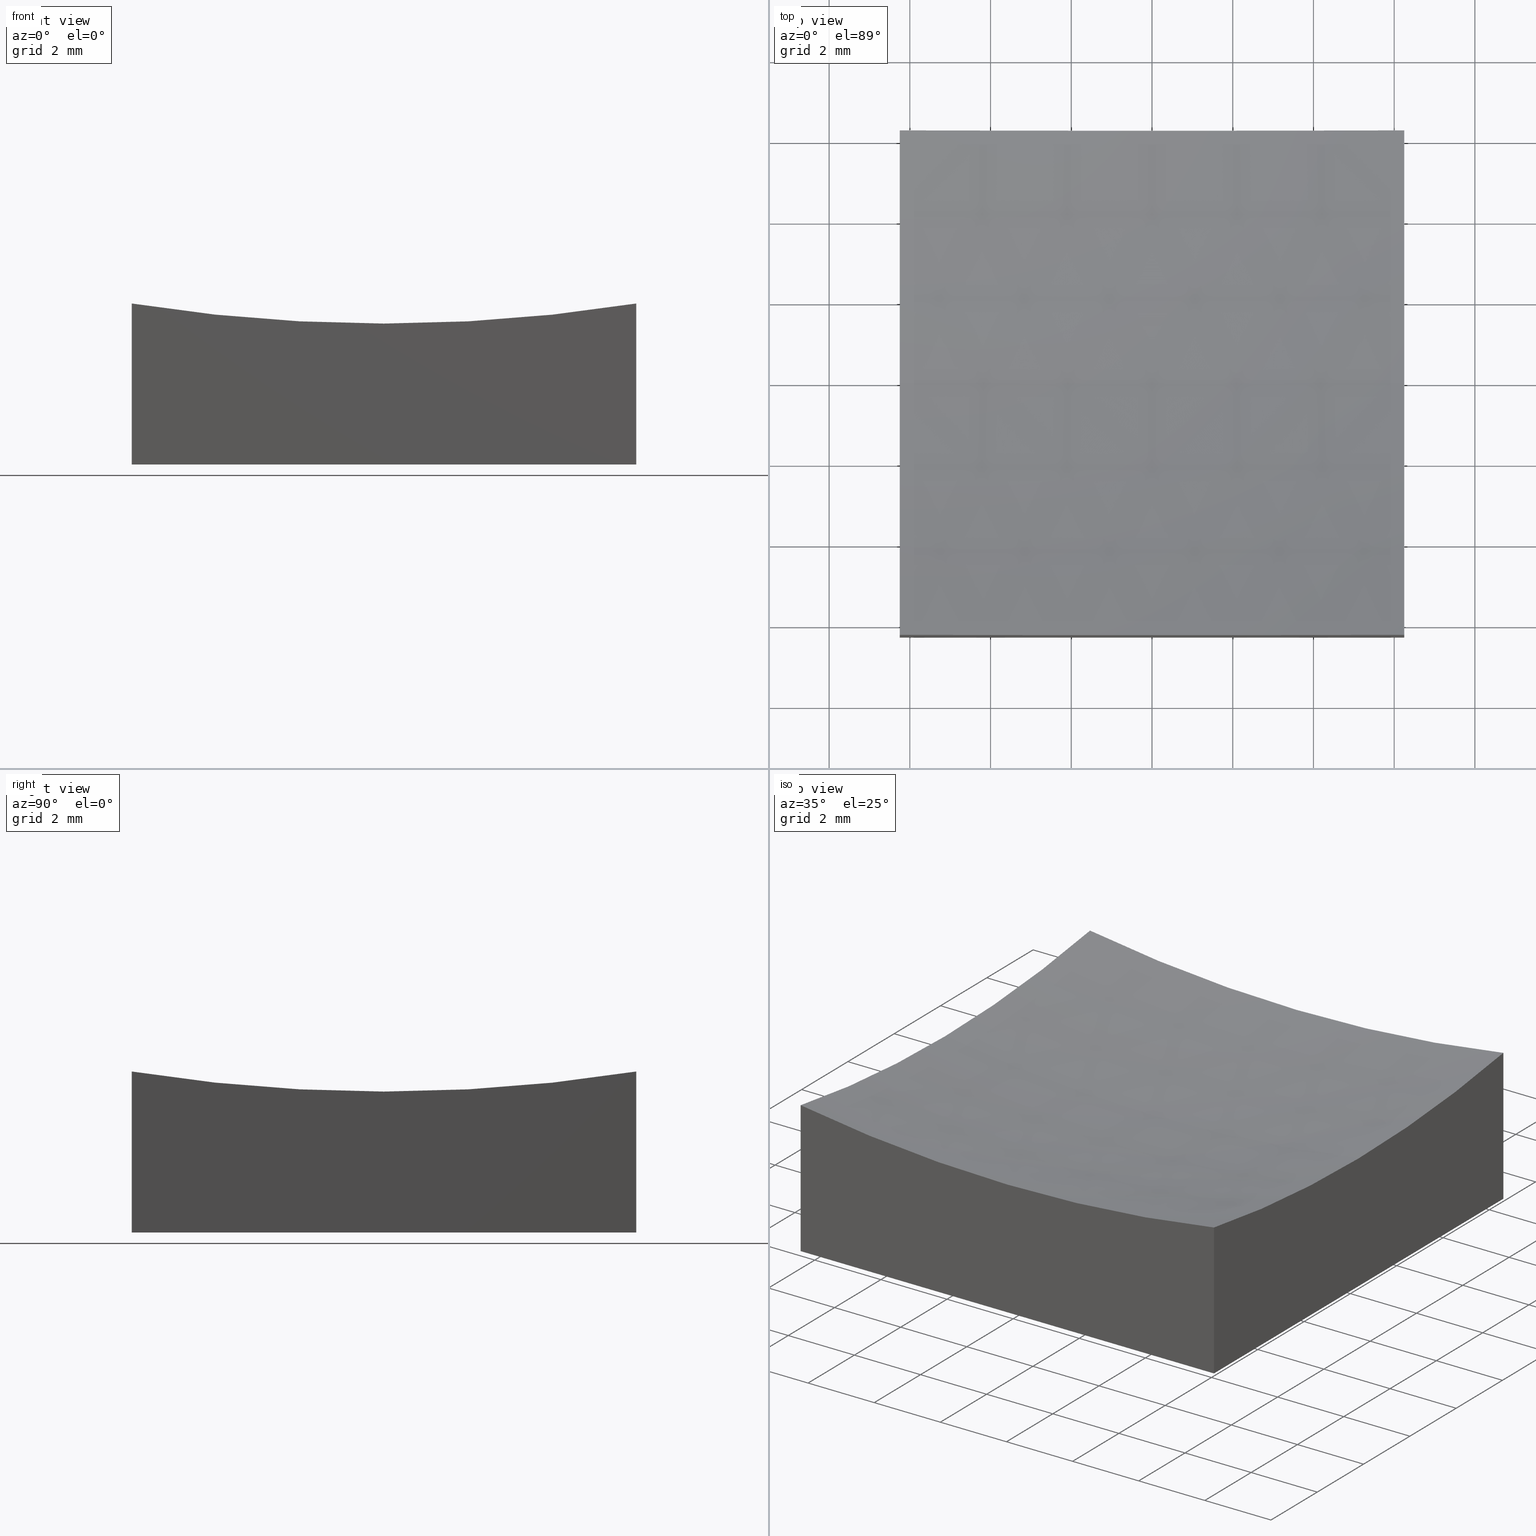
[diagram: canonical four-view strip — front | top / right | iso, engineering-drawing reading convention]
A machine part, canonical four-view strip (front | top / right | iso — engineering-drawing reading convention). The complete STEP part file that produces these views, byte-faithful:
ISO-10303-21;
HEADER;
FILE_DESCRIPTION (( 'STEP AP214' ),
    '1' );
FILE_NAME ('270013.STEP',
    '2020-06-01T08:30:04',
    ( '' ),
    ( '' ),
    'SwSTEP 2.0',
    'SolidWorks 2019',
    '' );
FILE_SCHEMA (( 'AUTOMOTIVE_DESIGN' ));
ENDSEC;

DATA;
#1 = ORIENTED_EDGE ( 'NONE', *, *, #75, .F. ) ;
#2 = SHAPE_DEFINITION_REPRESENTATION ( #130, #137 ) ;
#3 = ADVANCED_FACE ( 'NONE', ( #32 ), #9, .T. ) ;
#4 = ORIENTED_EDGE ( 'NONE', *, *, #75, .T. ) ;
#5 = ORIENTED_EDGE ( 'NONE', *, *, #181, .F. ) ;
#6 = ORIENTED_EDGE ( 'NONE', *, *, #17, .T. ) ;
#7 = VERTEX_POINT ( 'NONE', #115 ) ;
#8 = CARTESIAN_POINT ( 'NONE',  ( -6.250000000000000000, 7.654042494670970425E-16, 3.491298426802226018 ) ) ;
#9 = PLANE ( 'NONE',  #179 ) ;
#10 = DIRECTION ( 'NONE',  ( 1.000000000000000000, 0.0000000000000000000, 0.0000000000000000000 ) ) ;
#11 = APPLICATION_CONTEXT ( 'automotive_design' ) ;
#12 = DIRECTION ( 'NONE',  ( 1.000000000000000000, 0.0000000000000000000, -0.0000000000000000000 ) ) ;
#13 = CARTESIAN_POINT ( 'NONE',  ( 6.250000000000000000, 6.250000000000000888, 0.0000000000000000000 ) ) ;
#14 = DIRECTION ( 'NONE',  ( 0.0000000000000000000, 0.0000000000000000000, -1.000000000000000000 ) ) ;
#15 = AXIS2_PLACEMENT_3D ( 'NONE', #71, #147, #218 ) ;
#16 = PRESENTATION_STYLE_ASSIGNMENT (( #36 ) ) ;
#17 = EDGE_CURVE ( 'NONE', #183, #203, #109, .T. ) ;
#18 = SPHERICAL_SURFACE ( 'NONE', #167, 40.00000000000000711 ) ;
#19 = AXIS2_PLACEMENT_3D ( 'NONE', #210, #148, #212 ) ;
#20 =( LENGTH_UNIT ( ) NAMED_UNIT ( * ) SI_UNIT ( .MILLI., .METRE. ) );
#21 = AXIS2_PLACEMENT_3D ( 'NONE', #193, #86, #150 ) ;
#22 = ORIENTED_EDGE ( 'NONE', *, *, #149, .F. ) ;
#23 = VERTEX_POINT ( 'NONE', #174 ) ;
#24 = FILL_AREA_STYLE_COLOUR ( '', #240 ) ;
#25 = ORIENTED_EDGE ( 'NONE', *, *, #165, .F. ) ;
#26 = APPLICATION_CONTEXT ( 'automotive_design' ) ;
#27 = AXIS2_PLACEMENT_3D ( 'NONE', #154, #215, #159 ) ;
#28 = EDGE_LOOP ( 'NONE', ( #106, #67, #236, #237, #66 ) ) ;
#29 = ORIENTED_EDGE ( 'NONE', *, *, #155, .T. ) ;
#30 = DIRECTION ( 'NONE',  ( 0.0000000000000000000, -1.000000000000000000, 0.0000000000000000000 ) ) ;
#31 = PLANE ( 'NONE',  #205 ) ;
#32 = FACE_OUTER_BOUND ( 'NONE', #112, .T. ) ;
#33 = CIRCLE ( 'NONE', #27, 39.50870157319778286 ) ;
#34 = DIRECTION ( 'NONE',  ( 0.0000000000000000000, 0.0000000000000000000, -1.000000000000000000 ) ) ;
#35 = CARTESIAN_POINT ( 'NONE',  ( 6.250000000000000000, 0.0000000000000000000, 3.491298426802226018 ) ) ;
#36 = SURFACE_STYLE_USAGE ( .BOTH. , #247 ) ;
#37 = AXIS2_PLACEMENT_3D ( 'NONE', #78, #12, #34 ) ;
#38 = COLOUR_RGB ( '',1.000000000000000000, 1.000000000000000000, 1.000000000000000000 ) ;
#39 = CARTESIAN_POINT ( 'NONE',  ( -6.250000000000000000, -6.250000000000000888, 0.0000000000000000000 ) ) ;
#40 = CARTESIAN_POINT ( 'NONE',  ( -6.250000000000000000, -6.250000000000000888, 0.0000000000000000000 ) ) ;
#41 = DIRECTION ( 'NONE',  ( 1.000000000000000000, 0.0000000000000000000, 0.0000000000000000000 ) ) ;
#42 = ORIENTED_EDGE ( 'NONE', *, *, #87, .T. ) ;
#43 = ORIENTED_EDGE ( 'NONE', *, *, #96, .T. ) ;
#44 = ORIENTED_EDGE ( 'NONE', *, *, #17, .F. ) ;
#45 = PRODUCT_DEFINITION ( 'δ֪', '', #201, #220 ) ;
#46 = AXIS2_PLACEMENT_3D ( 'NONE', #119, #251, #116 ) ;
#47 = ORIENTED_EDGE ( 'NONE', *, *, #211, .F. ) ;
#48 = CARTESIAN_POINT ( 'NONE',  ( -6.250000000000000000, 6.250000000000000888, 0.0000000000000000000 ) ) ;
#49 = EDGE_LOOP ( 'NONE', ( #25, #4, #232, #170 ) ) ;
#50 = CARTESIAN_POINT ( 'NONE',  ( 5.265981236333619259E-15, 0.0000000000000000000, 43.00000000000000000 ) ) ;
#51 = UNCERTAINTY_MEASURE_WITH_UNIT (LENGTH_MEASURE( 1.000000000000000082E-05 ), #20, 'distance_accuracy_value', 'NONE');
#52 = LINE ( 'NONE', #117, #151 ) ;
#53 = PRODUCT_RELATED_PRODUCT_CATEGORY ( 'part', '', ( #146 ) ) ;
#54 = CARTESIAN_POINT ( 'NONE',  ( -6.250000000000000000, 6.250000000000000888, 10.00000000000000000 ) ) ;
#55 = AXIS2_PLACEMENT_3D ( 'NONE', #180, #248, #200 ) ;
#56 = MECHANICAL_DESIGN_GEOMETRIC_PRESENTATION_REPRESENTATION (  '', ( #172 ), #92 ) ;
#57 = PRESENTATION_LAYER_ASSIGNMENT (  '', '', ( #172 ) ) ;
#58 = FACE_OUTER_BOUND ( 'NONE', #28, .T. ) ;
#59 = LINE ( 'NONE', #54, #122 ) ;
#60 = SURFACE_SIDE_STYLE ('',( #104 ) ) ;
#61 = CARTESIAN_POINT ( 'NONE',  ( 6.250000000000000000, -6.250000000000000888, 0.0000000000000000000 ) ) ;
#62 =( GEOMETRIC_REPRESENTATION_CONTEXT ( 3 ) GLOBAL_UNCERTAINTY_ASSIGNED_CONTEXT ( ( #225 ) ) GLOBAL_UNIT_ASSIGNED_CONTEXT ( ( #199, #196, #120 ) ) REPRESENTATION_CONTEXT ( 'NONE', 'WORKASPACE' ) );
#63 = DIRECTION ( 'NONE',  ( -0.0000000000000000000, -0.0000000000000000000, -1.000000000000000000 ) ) ;
#64 = EDGE_LOOP ( 'NONE', ( #68, #6, #83, #22 ) ) ;
#65 = EDGE_CURVE ( 'NONE', #23, #183, #191, .T. ) ;
#66 = ORIENTED_EDGE ( 'NONE', *, *, #149, .T. ) ;
#67 = ORIENTED_EDGE ( 'NONE', *, *, #181, .T. ) ;
#68 = ORIENTED_EDGE ( 'NONE', *, *, #114, .T. ) ;
#69 = EDGE_LOOP ( 'NONE', ( #100, #121, #145, #123 ) ) ;
#70 = AXIS2_PLACEMENT_3D ( 'NONE', #79, #177, #226 ) ;
#71 = CARTESIAN_POINT ( 'NONE',  ( 0.0000000000000000000, 0.0000000000000000000, 0.0000000000000000000 ) ) ;
#72 = CARTESIAN_POINT ( 'NONE',  ( 6.250000000000000000, 6.250000000000000888, 10.00000000000000000 ) ) ;
#73 = DIRECTION ( 'NONE',  ( 0.0000000000000000000, 0.0000000000000000000, -1.000000000000000000 ) ) ;
#74 = FACE_OUTER_BOUND ( 'NONE', #84, .T. ) ;
#75 = EDGE_CURVE ( 'NONE', #175, #7, #93, .T. ) ;
#76 = CARTESIAN_POINT ( 'NONE',  ( 6.250000000000000000, -6.250000000000000888, 3.988783664181906552 ) ) ;
#77 = LINE ( 'NONE', #156, #195 ) ;
#78 = CARTESIAN_POINT ( 'NONE',  ( 6.250000000000000000, 0.0000000000000000000, 43.00000000000000000 ) ) ;
#79 = CARTESIAN_POINT ( 'NONE',  ( -6.250000000000000000, 0.0000000000000000000, 43.00000000000000000 ) ) ;
#80 = DIRECTION ( 'NONE',  ( 0.0000000000000000000, 0.0000000000000000000, 1.000000000000000000 ) ) ;
#81 = FACE_OUTER_BOUND ( 'NONE', #49, .T. ) ;
#82 = AXIS2_PLACEMENT_3D ( 'NONE', #138, #246, #14 ) ;
#83 = ORIENTED_EDGE ( 'NONE', *, *, #250, .F. ) ;
#84 = EDGE_LOOP ( 'NONE', ( #47, #187, #5, #1, #42 ) ) ;
#85 = AXIS2_PLACEMENT_3D ( 'NONE', #249, #198, #157 ) ;
#86 = DIRECTION ( 'NONE',  ( 0.0000000000000000000, 1.000000000000000000, 0.0000000000000000000 ) ) ;
#87 = EDGE_CURVE ( 'NONE', #175, #164, #222, .T. ) ;
#88 = CARTESIAN_POINT ( 'NONE',  ( 1.289056355451229731E-14, 0.0000000000000000000, 2.999999999999995559 ) ) ;
#89 = CIRCLE ( 'NONE', #82, 40.00000000000000711 ) ;
#90 = UNCERTAINTY_MEASURE_WITH_UNIT (LENGTH_MEASURE( 1.000000000000000082E-05 ), #160, 'distance_accuracy_value', 'NONE');
#91 = DIRECTION ( 'NONE',  ( 1.000000000000000000, 0.0000000000000000000, 1.734723475976806848E-16 ) ) ;
#92 =( GEOMETRIC_REPRESENTATION_CONTEXT ( 3 ) GLOBAL_UNCERTAINTY_ASSIGNED_CONTEXT ( ( #90 ) ) GLOBAL_UNIT_ASSIGNED_CONTEXT ( ( #160, #99, #182 ) ) REPRESENTATION_CONTEXT ( 'NONE', 'WORKASPACE' ) );
#93 = CIRCLE ( 'NONE', #21, 39.50870157319778286 ) ;
#94 = PLANE ( 'NONE',  #85 ) ;
#95 = DIRECTION ( 'NONE',  ( -0.0000000000000000000, -0.0000000000000000000, -1.000000000000000000 ) ) ;
#96 = EDGE_CURVE ( 'NONE', #23, #125, #98, .T. ) ;
#97 =( NAMED_UNIT ( * ) SI_UNIT ( $, .STERADIAN. ) SOLID_ANGLE_UNIT ( ) );
#98 = CIRCLE ( 'NONE', #19, 39.50870157319778286 ) ;
#99 =( NAMED_UNIT ( * ) PLANE_ANGLE_UNIT ( ) SI_UNIT ( $, .RADIAN. ) );
#100 = ORIENTED_EDGE ( 'NONE', *, *, #96, .F. ) ;
#101 = APPLICATION_PROTOCOL_DEFINITION ( 'draft international standard', 'automotive_design', 1998, #26 ) ;
#102 = ADVANCED_FACE ( 'NONE', ( #219 ), #107, .F. ) ;
#103 = VERTEX_POINT ( 'NONE', #88 ) ;
#104 = SURFACE_STYLE_FILL_AREA ( #234 ) ;
#105 = CIRCLE ( 'NONE', #46, 40.00000000000000711 ) ;
#106 = ORIENTED_EDGE ( 'NONE', *, *, #184, .F. ) ;
#107 = SPHERICAL_SURFACE ( 'NONE', #202, 40.00000000000000711 ) ;
#108 = ADVANCED_FACE ( 'NONE', ( #190 ), #239, .T. ) ;
#109 = LINE ( 'NONE', #133, #136 ) ;
#110 = AXIS2_PLACEMENT_3D ( 'NONE', #163, #80, #227 ) ;
#111 = VECTOR ( 'NONE', #10, 1000.000000000000000 ) ;
#112 = EDGE_LOOP ( 'NONE', ( #204, #126, #44, #143, #166 ) ) ;
#113 = CARTESIAN_POINT ( 'NONE',  ( -6.250000000000000000, 6.250000000000000888, 10.00000000000000000 ) ) ;
#114 = EDGE_CURVE ( 'NONE', #185, #183, #152, .T. ) ;
#115 = CARTESIAN_POINT ( 'NONE',  ( -6.250000000000000000, -6.250000000000000888, 3.988783664181906552 ) ) ;
#116 = DIRECTION ( 'NONE',  ( -1.000000000000000000, 1.224646799147353207E-16, 0.0000000000000000000 ) ) ;
#117 = CARTESIAN_POINT ( 'NONE',  ( -6.250000000000000000, 6.250000000000000888, 0.0000000000000000000 ) ) ;
#118 = PRESENTATION_LAYER_ASSIGNMENT (  '', '', ( #144 ) ) ;
#119 = CARTESIAN_POINT ( 'NONE',  ( 5.265981236333619259E-15, 0.0000000000000000000, 43.00000000000000000 ) ) ;
#120 =( NAMED_UNIT ( * ) SI_UNIT ( $, .STERADIAN. ) SOLID_ANGLE_UNIT ( ) );
#121 = ORIENTED_EDGE ( 'NONE', *, *, #65, .T. ) ;
#122 = VECTOR ( 'NONE', #95, 1000.000000000000000 ) ;
#123 = ORIENTED_EDGE ( 'NONE', *, *, #233, .F. ) ;
#124 =( NAMED_UNIT ( * ) PLANE_ANGLE_UNIT ( ) SI_UNIT ( $, .RADIAN. ) );
#125 = VERTEX_POINT ( 'NONE', #128 ) ;
#126 = ORIENTED_EDGE ( 'NONE', *, *, #165, .T. ) ;
#127 = ADVANCED_FACE ( 'NONE', ( #243 ), #31, .T. ) ;
#128 = CARTESIAN_POINT ( 'NONE',  ( -6.250000000000000000, 6.250000000000000888, 3.988783664181906552 ) ) ;
#129 = DIRECTION ( 'NONE',  ( 1.000000000000000000, 0.0000000000000000000, -0.0000000000000000000 ) ) ;
#130 = PRODUCT_DEFINITION_SHAPE ( 'NONE', 'NONE',  #45 ) ;
#131 = CLOSED_SHELL ( 'NONE', ( #142, #127, #228, #194, #3, #108, #102 ) ) ;
#132 = DIRECTION ( 'NONE',  ( -0.0000000000000000000, 1.000000000000000000, 0.0000000000000000000 ) ) ;
#133 = CARTESIAN_POINT ( 'NONE',  ( 6.250000000000000000, 6.250000000000000888, 0.0000000000000000000 ) ) ;
#134 = DIRECTION ( 'NONE',  ( -0.0000000000000000000, 0.0000000000000000000, -1.000000000000000000 ) ) ;
#135 = CARTESIAN_POINT ( 'NONE',  ( -6.250000000000000000, 6.250000000000000888, 0.0000000000000000000 ) ) ;
#136 = VECTOR ( 'NONE', #30, 1000.000000000000000 ) ;
#137 = ADVANCED_BREP_SHAPE_REPRESENTATION ( '270013', ( #242, #110 ), #162 ) ;
#138 = CARTESIAN_POINT ( 'NONE',  ( 5.265981236333619259E-15, 0.0000000000000000000, 43.00000000000000000 ) ) ;
#139 = SURFACE_STYLE_FILL_AREA ( #178 ) ;
#140 = PRODUCT_CONTEXT ( 'NONE', #11, 'mechanical' ) ;
#141 = VERTEX_POINT ( 'NONE', #8 ) ;
#142 = ADVANCED_FACE ( 'NONE', ( #74 ), #18, .F. ) ;
#143 = ORIENTED_EDGE ( 'NONE', *, *, #65, .F. ) ;
#144 = STYLED_ITEM ( 'NONE', ( #16 ), #242 ) ;
#145 = ORIENTED_EDGE ( 'NONE', *, *, #114, .F. ) ;
#146 = PRODUCT ( '270013', '270013', '', ( #140 ) ) ;
#147 = DIRECTION ( 'NONE',  ( 0.0000000000000000000, 0.0000000000000000000, -1.000000000000000000 ) ) ;
#148 = DIRECTION ( 'NONE',  ( 0.0000000000000000000, 1.000000000000000000, 0.0000000000000000000 ) ) ;
#149 = EDGE_CURVE ( 'NONE', #185, #238, #52, .T. ) ;
#150 = DIRECTION ( 'NONE',  ( 0.0000000000000000000, 0.0000000000000000000, 1.000000000000000000 ) ) ;
#151 = VECTOR ( 'NONE', #213, 1000.000000000000000 ) ;
#152 = LINE ( 'NONE', #48, #111 ) ;
#153 = CARTESIAN_POINT ( 'NONE',  ( 6.250000000000000000, 6.250000000000000888, 10.00000000000000000 ) ) ;
#154 = CARTESIAN_POINT ( 'NONE',  ( -6.250000000000000000, 0.0000000000000000000, 43.00000000000000000 ) ) ;
#155 = EDGE_CURVE ( 'NONE', #164, #23, #244, .T. ) ;
#156 = CARTESIAN_POINT ( 'NONE',  ( -6.250000000000000000, -6.250000000000000888, 10.00000000000000000 ) ) ;
#157 = DIRECTION ( 'NONE',  ( 0.0000000000000000000, -0.0000000000000000000, 1.000000000000000000 ) ) ;
#158 = PRESENTATION_STYLE_ASSIGNMENT (( #252 ) ) ;
#159 = DIRECTION ( 'NONE',  ( 0.0000000000000000000, 0.0000000000000000000, -1.000000000000000000 ) ) ;
#160 =( LENGTH_UNIT ( ) NAMED_UNIT ( * ) SI_UNIT ( .MILLI., .METRE. ) );
#161 = PLANE ( 'NONE',  #55 ) ;
#162 =( GEOMETRIC_REPRESENTATION_CONTEXT ( 3 ) GLOBAL_UNCERTAINTY_ASSIGNED_CONTEXT ( ( #51 ) ) GLOBAL_UNIT_ASSIGNED_CONTEXT ( ( #20, #124, #97 ) ) REPRESENTATION_CONTEXT ( 'NONE', 'WORKASPACE' ) );
#163 = CARTESIAN_POINT ( 'NONE',  ( 0.0000000000000000000, 0.0000000000000000000, 0.0000000000000000000 ) ) ;
#164 = VERTEX_POINT ( 'NONE', #35 ) ;
#165 = EDGE_CURVE ( 'NONE', #175, #203, #223, .T. ) ;
#166 = ORIENTED_EDGE ( 'NONE', *, *, #155, .F. ) ;
#167 = AXIS2_PLACEMENT_3D ( 'NONE', #221, #197, #91 ) ;
#168 = ORIENTED_EDGE ( 'NONE', *, *, #169, .F. ) ;
#169 = EDGE_CURVE ( 'NONE', #103, #141, #105, .T. ) ;
#170 = ORIENTED_EDGE ( 'NONE', *, *, #250, .T. ) ;
#171 = CIRCLE ( 'NONE', #70, 39.50870157319778286 ) ;
#172 = STYLED_ITEM ( 'NONE', ( #158 ), #137 ) ;
#173 = DIRECTION ( 'NONE',  ( 0.0000000000000000000, -0.0000000000000000000, 1.000000000000000000 ) ) ;
#174 = CARTESIAN_POINT ( 'NONE',  ( 6.250000000000000000, 6.250000000000000888, 3.988783664181906552 ) ) ;
#175 = VERTEX_POINT ( 'NONE', #76 ) ;
#176 = EDGE_CURVE ( 'NONE', #141, #125, #171, .T. ) ;
#177 = DIRECTION ( 'NONE',  ( 1.000000000000000000, 0.0000000000000000000, -0.0000000000000000000 ) ) ;
#178 = FILL_AREA_STYLE ('',( #230 ) ) ;
#179 = AXIS2_PLACEMENT_3D ( 'NONE', #72, #129, #134 ) ;
#180 = CARTESIAN_POINT ( 'NONE',  ( -6.250000000000000000, 6.250000000000000888, 10.00000000000000000 ) ) ;
#181 = EDGE_CURVE ( 'NONE', #7, #141, #33, .T. ) ;
#182 =( NAMED_UNIT ( * ) SI_UNIT ( $, .STERADIAN. ) SOLID_ANGLE_UNIT ( ) );
#183 = VERTEX_POINT ( 'NONE', #13 ) ;
#184 = EDGE_CURVE ( 'NONE', #7, #238, #77, .T. ) ;
#185 = VERTEX_POINT ( 'NONE', #135 ) ;
#186 = LINE ( 'NONE', #39, #206 ) ;
#187 = ORIENTED_EDGE ( 'NONE', *, *, #169, .T. ) ;
#188 = ORIENTED_EDGE ( 'NONE', *, *, #211, .T. ) ;
#189 = VECTOR ( 'NONE', #224, 1000.000000000000000 ) ;
#190 = FACE_OUTER_BOUND ( 'NONE', #64, .T. ) ;
#191 = LINE ( 'NONE', #153, #235 ) ;
#192 = DIRECTION ( 'NONE',  ( 0.0000000000000000000, 1.000000000000000000, 0.0000000000000000000 ) ) ;
#193 = CARTESIAN_POINT ( 'NONE',  ( 5.265981236333619259E-15, -6.250000000000000888, 43.00000000000000000 ) ) ;
#194 = ADVANCED_FACE ( 'NONE', ( #81 ), #94, .F. ) ;
#195 = VECTOR ( 'NONE', #63, 1000.000000000000000 ) ;
#196 =( NAMED_UNIT ( * ) PLANE_ANGLE_UNIT ( ) SI_UNIT ( $, .RADIAN. ) );
#197 = DIRECTION ( 'NONE',  ( -0.0000000000000000000, 1.000000000000000000, 0.0000000000000000000 ) ) ;
#198 = DIRECTION ( 'NONE',  ( 0.0000000000000000000, 1.000000000000000000, 0.0000000000000000000 ) ) ;
#199 =( LENGTH_UNIT ( ) NAMED_UNIT ( * ) SI_UNIT ( .MILLI., .METRE. ) );
#200 = DIRECTION ( 'NONE',  ( -0.0000000000000000000, 0.0000000000000000000, -1.000000000000000000 ) ) ;
#201 = PRODUCT_DEFINITION_FORMATION_WITH_SPECIFIED_SOURCE ( '�κ�', '', #146, .NOT_KNOWN. ) ;
#202 = AXIS2_PLACEMENT_3D ( 'NONE', #50, #132, #209 ) ;
#203 = VERTEX_POINT ( 'NONE', #61 ) ;
#204 = ORIENTED_EDGE ( 'NONE', *, *, #87, .F. ) ;
#205 = AXIS2_PLACEMENT_3D ( 'NONE', #113, #192, #173 ) ;
#206 = VECTOR ( 'NONE', #41, 1000.000000000000000 ) ;
#207 = DIRECTION ( 'NONE',  ( 1.000000000000000000, 0.0000000000000000000, -0.0000000000000000000 ) ) ;
#208 = CARTESIAN_POINT ( 'NONE',  ( 6.250000000000000000, 0.0000000000000000000, 43.00000000000000000 ) ) ;
#209 = DIRECTION ( 'NONE',  ( 1.000000000000000000, 0.0000000000000000000, 1.734723475976806848E-16 ) ) ;
#210 = CARTESIAN_POINT ( 'NONE',  ( 5.265981236333619259E-15, 6.250000000000000888, 43.00000000000000000 ) ) ;
#211 = EDGE_CURVE ( 'NONE', #103, #164, #89, .T. ) ;
#212 = DIRECTION ( 'NONE',  ( 0.0000000000000000000, 0.0000000000000000000, 1.000000000000000000 ) ) ;
#213 = DIRECTION ( 'NONE',  ( 0.0000000000000000000, -1.000000000000000000, 0.0000000000000000000 ) ) ;
#214 = CARTESIAN_POINT ( 'NONE',  ( 6.250000000000000000, -6.250000000000000888, 10.00000000000000000 ) ) ;
#215 = DIRECTION ( 'NONE',  ( 1.000000000000000000, 0.0000000000000000000, -0.0000000000000000000 ) ) ;
#216 = ORIENTED_EDGE ( 'NONE', *, *, #176, .F. ) ;
#217 = EDGE_LOOP ( 'NONE', ( #168, #188, #29, #43, #216 ) ) ;
#218 = DIRECTION ( 'NONE',  ( -1.000000000000000000, 0.0000000000000000000, -0.0000000000000000000 ) ) ;
#219 = FACE_OUTER_BOUND ( 'NONE', #217, .T. ) ;
#220 = PRODUCT_DEFINITION_CONTEXT ( 'detailed design', #26, 'design' ) ;
#221 = CARTESIAN_POINT ( 'NONE',  ( 5.265981236333619259E-15, 0.0000000000000000000, 43.00000000000000000 ) ) ;
#222 = CIRCLE ( 'NONE', #229, 39.50870157319778286 ) ;
#223 = LINE ( 'NONE', #214, #189 ) ;
#224 = DIRECTION ( 'NONE',  ( -0.0000000000000000000, -0.0000000000000000000, -1.000000000000000000 ) ) ;
#225 = UNCERTAINTY_MEASURE_WITH_UNIT (LENGTH_MEASURE( 1.000000000000000082E-05 ), #199, 'distance_accuracy_value', 'NONE');
#226 = DIRECTION ( 'NONE',  ( 0.0000000000000000000, 0.0000000000000000000, -1.000000000000000000 ) ) ;
#227 = DIRECTION ( 'NONE',  ( 1.000000000000000000, 0.0000000000000000000, 0.0000000000000000000 ) ) ;
#228 = ADVANCED_FACE ( 'NONE', ( #58 ), #161, .F. ) ;
#229 = AXIS2_PLACEMENT_3D ( 'NONE', #208, #207, #73 ) ;
#230 = FILL_AREA_STYLE_COLOUR ( '', #38 ) ;
#231 = APPLICATION_PROTOCOL_DEFINITION ( 'draft international standard', 'automotive_design', 1998, #11 ) ;
#232 = ORIENTED_EDGE ( 'NONE', *, *, #184, .T. ) ;
#233 = EDGE_CURVE ( 'NONE', #125, #185, #59, .T. ) ;
#234 = FILL_AREA_STYLE ('',( #24 ) ) ;
#235 = VECTOR ( 'NONE', #241, 1000.000000000000000 ) ;
#236 = ORIENTED_EDGE ( 'NONE', *, *, #176, .T. ) ;
#237 = ORIENTED_EDGE ( 'NONE', *, *, #233, .T. ) ;
#238 = VERTEX_POINT ( 'NONE', #40 ) ;
#239 = PLANE ( 'NONE',  #15 ) ;
#240 = COLOUR_RGB ( '',1.000000000000000000, 1.000000000000000000, 1.000000000000000000 ) ;
#241 = DIRECTION ( 'NONE',  ( -0.0000000000000000000, -0.0000000000000000000, -1.000000000000000000 ) ) ;
#242 = MANIFOLD_SOLID_BREP ( '�г�-��ת2', #131 ) ;
#243 = FACE_OUTER_BOUND ( 'NONE', #69, .T. ) ;
#244 = CIRCLE ( 'NONE', #37, 39.50870157319778286 ) ;
#245 = MECHANICAL_DESIGN_GEOMETRIC_PRESENTATION_REPRESENTATION (  '', ( #144 ), #62 ) ;
#246 = DIRECTION ( 'NONE',  ( 0.0000000000000000000, -1.000000000000000000, 0.0000000000000000000 ) ) ;
#247 = SURFACE_SIDE_STYLE ('',( #139 ) ) ;
#248 = DIRECTION ( 'NONE',  ( 1.000000000000000000, 0.0000000000000000000, -0.0000000000000000000 ) ) ;
#249 = CARTESIAN_POINT ( 'NONE',  ( -6.250000000000000000, -6.250000000000000888, 10.00000000000000000 ) ) ;
#250 = EDGE_CURVE ( 'NONE', #238, #203, #186, .T. ) ;
#251 = DIRECTION ( 'NONE',  ( 1.224646799147353207E-16, 1.000000000000000000, 1.584475191367326902E-32 ) ) ;
#252 = SURFACE_STYLE_USAGE ( .BOTH. , #60 ) ;
ENDSEC;
END-ISO-10303-21;
